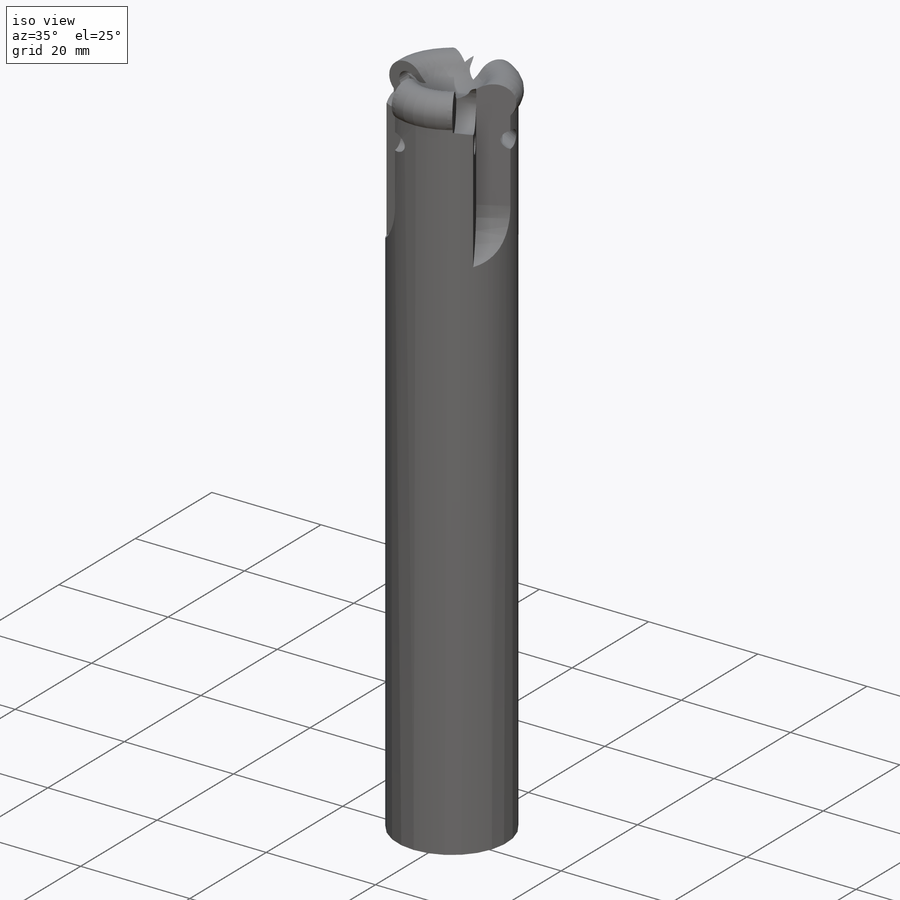
[diagram: iso view]
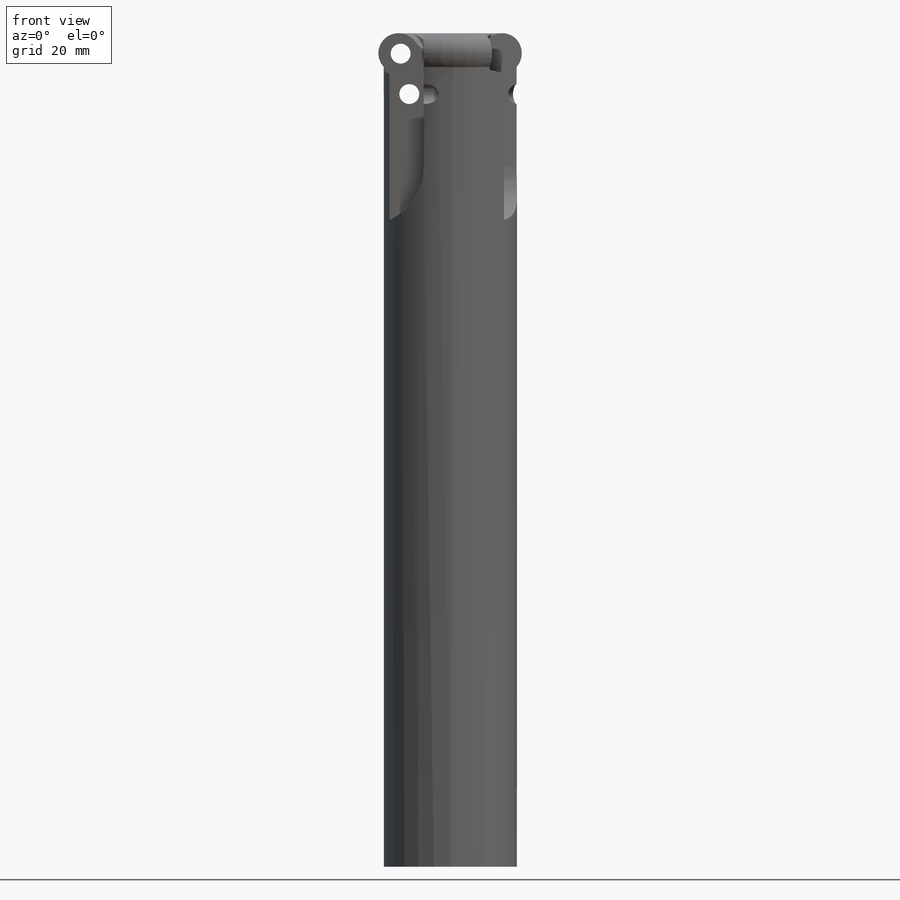
[diagram: front view]
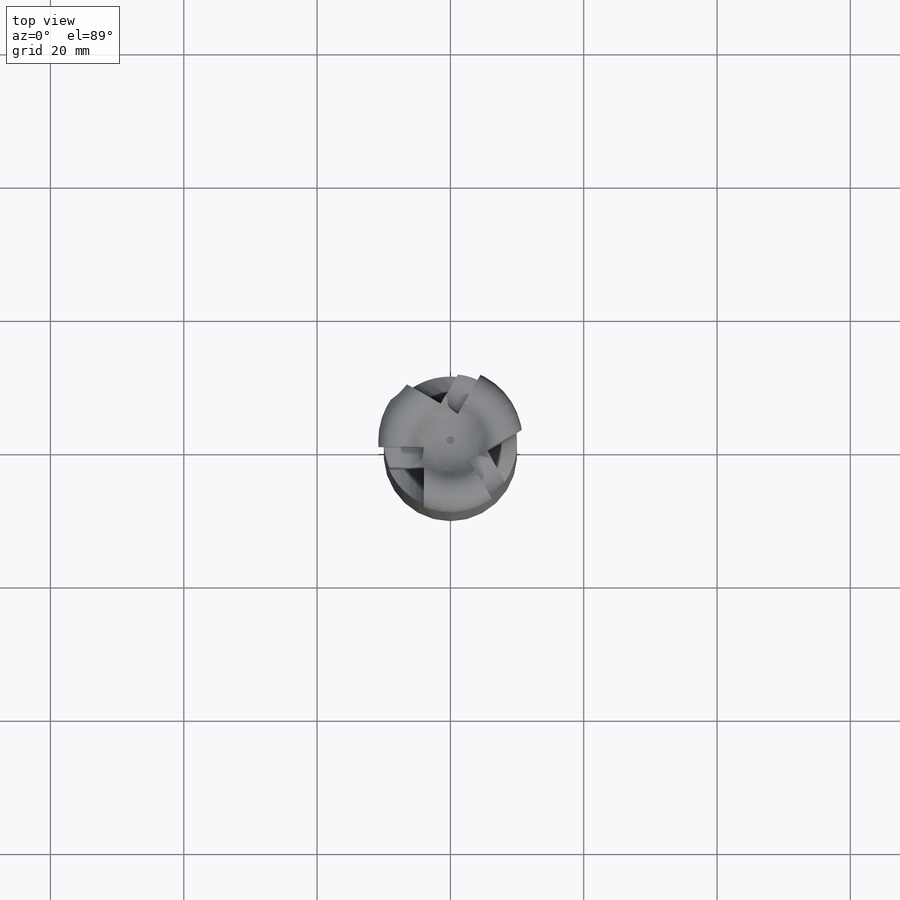
[diagram: top view]
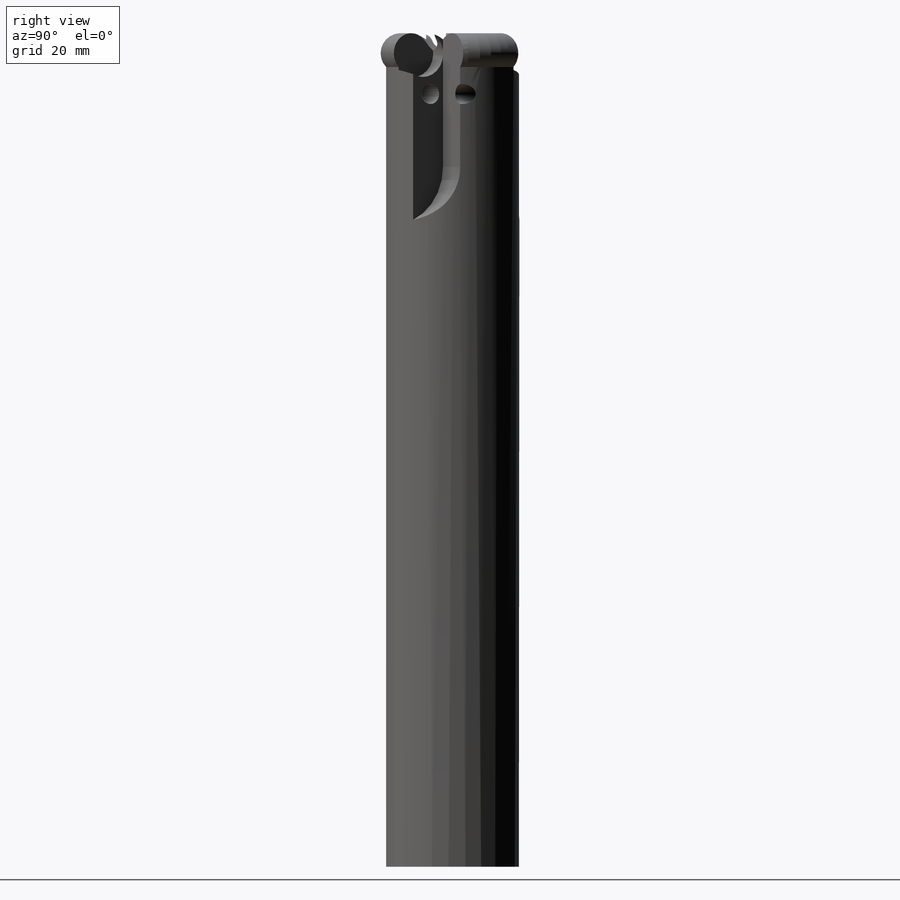
[diagram: right view]
SOLIDWORKS PART (.sldprt)
format: sldprt  version: not decoded by parser v0  size: 319,488 bytes
history: native  units: mm
features: sketch x6, cut_extrude x5, plane x4, thread x2, material x1, revolve x1, pattern_circular x1 (+10 scaffold rows collapsed)
feature tree (30):
  scaffold x10  (default folders/planes/origin — collapsed)
  material  "材质 <未指定>"
  plane  "前视基准面"
  plane  "上视基准面"
  plane  "右视基准面"
  sketch  "草图1"  dims[c1.D2=3.0mm c1.D3=3.0mm c1.D4=6.0mm c1.D1=~121.342984mm c2.D1=~1.468801deg c3.D1=10.0mm c3.D5=120.0mm]
  revolve  "旋转1"  Angle=360deg
  plane  "基准面1"  Offset=24mm
  sketch  "草图3"  dims[D4=3.0mm D3=6.0mm D1=0.0mm D2=0.0mm]
  cut_extrude  "切除-拉伸1"  Depth=20mm
  sketch  "草图6"  dims[c1.D1=7.0mm c1.D3=6.0mm c2.D1=5.0mm c2.D2=7.0mm c3.D1=~9.681122mm c3.D2=3.0mm c3.D3=31.0mm c4.D2=1.7mm c4.D3=2.0mm]
  cut_extrude  "切除-拉伸2"  Depth=3mm
  sketch  "草图8"  dims[c1.D1=3.0mm c1.D2=4.0mm c1.D3=5.0mm c2.D2=3.0mm c2.D3=3.0mm]
  cut_extrude  "切除-拉伸3"  [1 undecoded]
  thread  "装饰螺纹线2"  Diameter=9mm  [1 undecoded]
  sketch  "草图10"  dims[D1=3.0mm]
  cut_extrude  "切除-拉伸5"  Depth=2mm
  sketch  "草图12"  dims[D1=3.0mm]
  cut_extrude  "切除-拉伸6"  [1 undecoded]
  thread  "装饰螺纹线1"  Diameter=9mm  [1 undecoded]
  pattern_circular  "阵列(圆周)1"  Count=3 Angle=120deg
decode coverage: 13 of 15 modeling features carry decoded parameters
note: ~ marks probable driven/reference dimensions
note: 4 parameter values undecoded
note: suppression state not decoded; provenance and decode notes live in map.json
